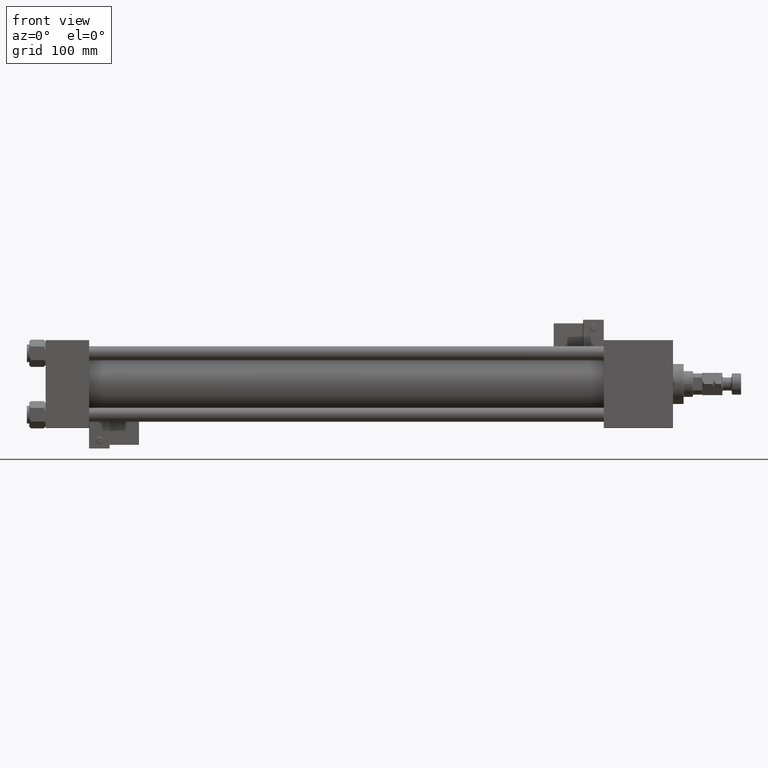
[diagram: clean part render]
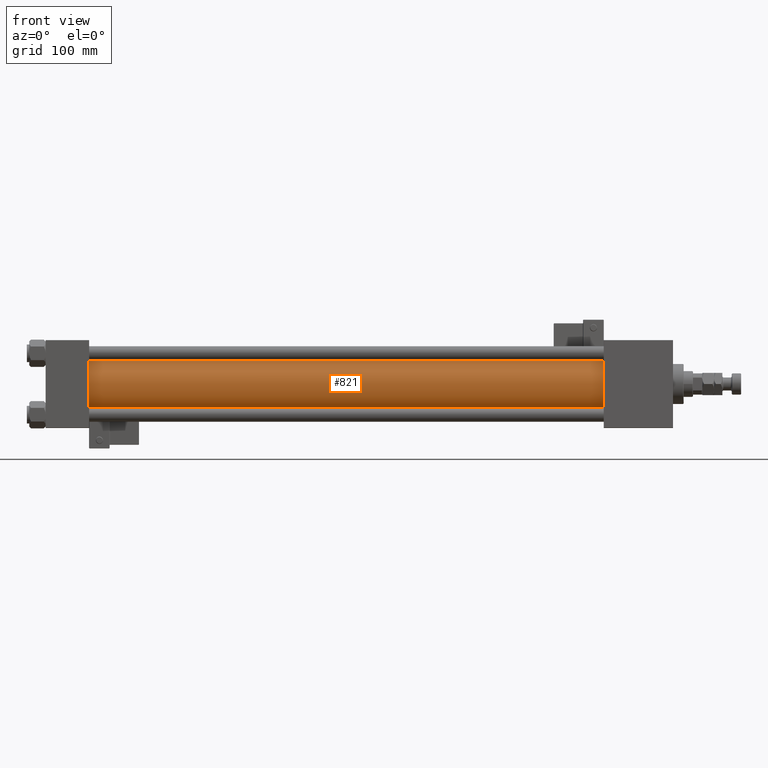
[diagram: same view with one face highlighted and labeled with its STEP entity id]
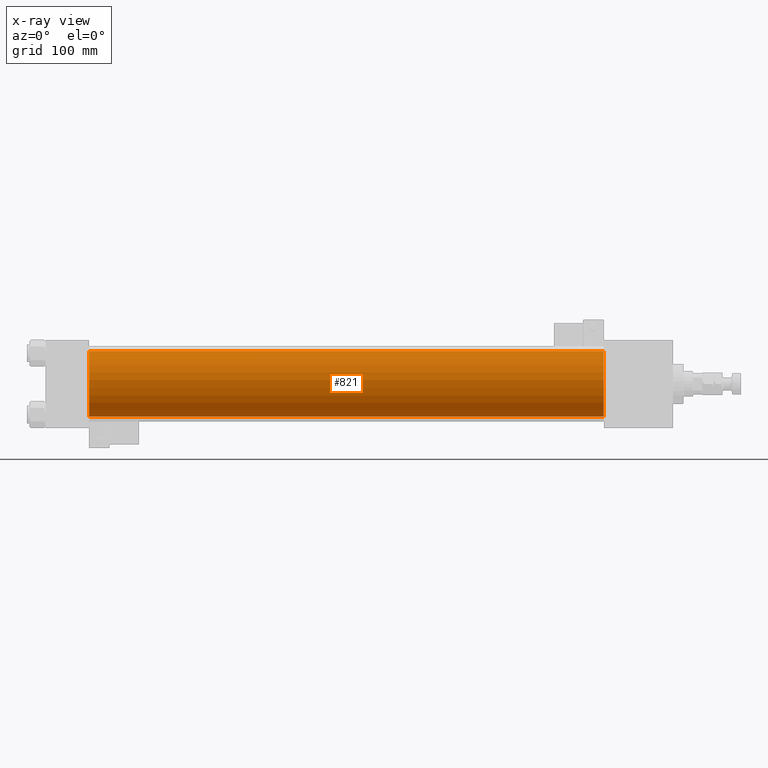
[diagram: x-ray of the same camera — body ghosted, the highlighted face saturated]
A machine part, front view. The second image highlights one B-rep face of the part: STEP entity #821.
The next image is the same camera in x-ray: the body ghosted, the highlighted face saturated — about 0% of this face is hidden behind the body in this view.
In plain terms, the highlighted cylindrical surface (edge-blend (fillet) strip) has radius 28 mm, axis along (-1, -0, -0).
Its self-contained STEP definition (entity closure, byte-faithful):
#821 = ADVANCED_FACE ( 'NONE', ( #46802 ), #21301, .T. ) ;
#1758 = CARTESIAN_POINT ( 'NONE',  ( 36.99999999999997868, -2.602085213965210642E-15, 0.000000000000000000 ) ) ;
#2595 = VERTEX_POINT ( 'NONE', #32540 ) ;
#5111 = DIRECTION ( 'NONE',  ( -1.000000000000000000, -0.000000000000000000, -0.000000000000000000 ) ) ;
#8404 = CARTESIAN_POINT ( 'NONE',  ( 475.0000000000000000, -2.602085213965210642E-15, 0.000000000000000000 ) ) ;
#9256 = ORIENTED_EDGE ( 'NONE', *, *, #54019, .F. ) ;
#10767 = DIRECTION ( 'NONE',  ( 1.000000000000000000, -0.000000000000000000, 0.000000000000000000 ) ) ;
#11193 = ORIENTED_EDGE ( 'NONE', *, *, #14415, .T. ) ;
#12616 = CARTESIAN_POINT ( 'NONE',  ( 475.0000000000000000, -2.602085213965210642E-15, 28.00000000000000000 ) ) ;
#13046 = DIRECTION ( 'NONE',  ( 0.000000000000000000, 0.000000000000000000, 1.000000000000000000 ) ) ;
#14415 = EDGE_CURVE ( 'NONE', #2595, #38827, #15906, .T. ) ;
#14952 = ORIENTED_EDGE ( 'NONE', *, *, #39773, .T. ) ;
#15906 = CIRCLE ( 'NONE', #27276, 28.00000000000000000 ) ;
#18657 = EDGE_LOOP ( 'NONE', ( #20448, #9256, #14952, #11193 ) ) ;
#20080 = AXIS2_PLACEMENT_3D ( 'NONE', #46238, #54182, #42674 ) ;
#20448 = ORIENTED_EDGE ( 'NONE', *, *, #40219, .F. ) ;
#21301 = CYLINDRICAL_SURFACE ( 'NONE', #51988, 28.00000000000000000 ) ;
#24629 = CARTESIAN_POINT ( 'NONE',  ( 475.0000000000000000, -2.602085213965210642E-15, 28.00000000000000000 ) ) ;
#26160 = CIRCLE ( 'NONE', #20080, 28.00000000000000000 ) ;
#27276 = AXIS2_PLACEMENT_3D ( 'NONE', #1758, #10767, #30839 ) ;
#30839 = DIRECTION ( 'NONE',  ( 0.000000000000000000, 0.000000000000000000, 1.000000000000000000 ) ) ;
#32540 = CARTESIAN_POINT ( 'NONE',  ( 36.99999999999997868, -2.602085213965210642E-15, 28.00000000000000000 ) ) ;
#33786 = VERTEX_POINT ( 'NONE', #24629 ) ;
#34495 = CARTESIAN_POINT ( 'NONE',  ( 475.0000000000000000, 8.269258236473784371E-16, -28.00000000000000000 ) ) ;
#34648 = CARTESIAN_POINT ( 'NONE',  ( 36.99999999999997868, 8.269258236473784371E-16, -28.00000000000000000 ) ) ;
#34765 = DIRECTION ( 'NONE',  ( -1.000000000000000000, -0.000000000000000000, -0.000000000000000000 ) ) ;
#37339 = LINE ( 'NONE', #12616, #43881 ) ;
#38621 = VERTEX_POINT ( 'NONE', #44286 ) ;
#38827 = VERTEX_POINT ( 'NONE', #34648 ) ;
#39553 = VECTOR ( 'NONE', #34765, 1000.000000000000000 ) ;
#39773 = EDGE_CURVE ( 'NONE', #33786, #2595, #37339, .T. ) ;
#40219 = EDGE_CURVE ( 'NONE', #38621, #38827, #42994, .T. ) ;
#42674 = DIRECTION ( 'NONE',  ( 0.000000000000000000, 0.000000000000000000, -1.000000000000000000 ) ) ;
#42994 = LINE ( 'NONE', #34495, #39553 ) ;
#43881 = VECTOR ( 'NONE', #49661, 1000.000000000000000 ) ;
#44286 = CARTESIAN_POINT ( 'NONE',  ( 475.0000000000000000, 8.269258236473784371E-16, -28.00000000000000000 ) ) ;
#46238 = CARTESIAN_POINT ( 'NONE',  ( 475.0000000000000000, -2.602085213965210642E-15, 0.000000000000000000 ) ) ;
#46802 = FACE_OUTER_BOUND ( 'NONE', #18657, .T. ) ;
#49661 = DIRECTION ( 'NONE',  ( -1.000000000000000000, -0.000000000000000000, -0.000000000000000000 ) ) ;
#51988 = AXIS2_PLACEMENT_3D ( 'NONE', #8404, #5111, #13046 ) ;
#54019 = EDGE_CURVE ( 'NONE', #33786, #38621, #26160, .T. ) ;
#54182 = DIRECTION ( 'NONE',  ( 1.000000000000000000, 0.000000000000000000, 0.000000000000000000 ) ) ;